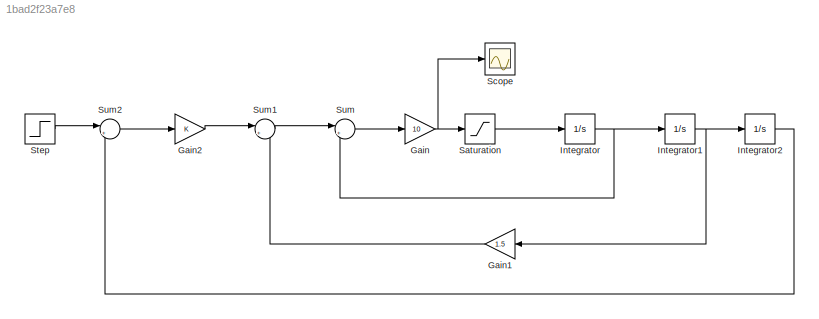
MODEL slx_1bad2f23a7e8
KIND model
CONFIG AbsTol = auto
CONFIG EnableMultiTasking = off
CONFIG FixedStep = auto
CONFIG MaxStep = auto
CONFIG MinStep = auto
CONFIG RelTol = 1e-3
CONFIG SampleTimeConstraint = Unconstrained
CONFIG SolverName = VariableStepAuto
CONFIG StartTime = 0.0
CONFIG StopTime = 100
BLOCK [Gain] Gain
  Gain = 10
BLOCK [Gain] Gain1
  Gain = 1.5
BLOCK [Gain] Gain2
BLOCK [Integrator] Integrator
BLOCK [Integrator] Integrator1
BLOCK [Integrator] Integrator2
BLOCK [Saturate] Saturation
BLOCK [Scope] Scope
  Floating = off
  NumInputPorts = 1
  ScopeSpecificationString = Simulink.scopes.TimeScopeBlockCfg('CurrentConfiguration', extmgr.ConfigurationSet(extmgr.Configuration('Core','General UI',true),extmgr.Configuration('Core','Source UI',true),extmgr.Configuration('Sources','WiredSimulink',true),extmgr.Configuration('Visuals','Time Domain',true,'SerializedDisplays',{struct('MinYLimReal','-12.91728','MaxYLimReal','18.17025','YLabelReal','','MinYLimMag','0.00000','Ma...<+1408ch>
BLOCK [Step] Step
  After = 1.50615
  SampleTime = 0
BLOCK [Sum] Sum
  Inputs = |+-
BLOCK [Sum] Sum1
  Inputs = |+-
BLOCK [Sum] Sum2
  Inputs = |+-
LINE Gain1:1 -> Sum1:2
LINE Gain2:1 -> Sum1:1
NET Gain:1 -> Saturation:1, Scope:1
NET Integrator1:1 -> Gain1:1, Integrator2:1
LINE Integrator2:1 -> Sum2:2
NET Integrator:1 -> Integrator1:1, Sum:2
LINE Saturation:1 -> Integrator:1
LINE Step:1 -> Sum2:1
LINE Sum1:1 -> Sum:1
LINE Sum2:1 -> Gain2:1
LINE Sum:1 -> Gain:1
note: NET lines group one-source signal fan-out (src -> all destinations, sorted); 1:1 wires keep LINE
